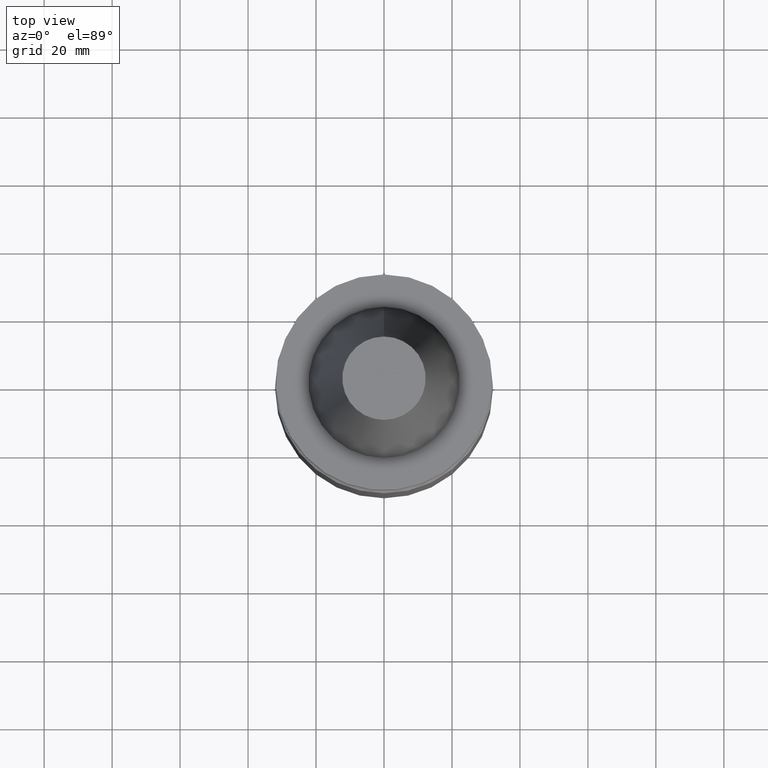
[diagram: clean part render]
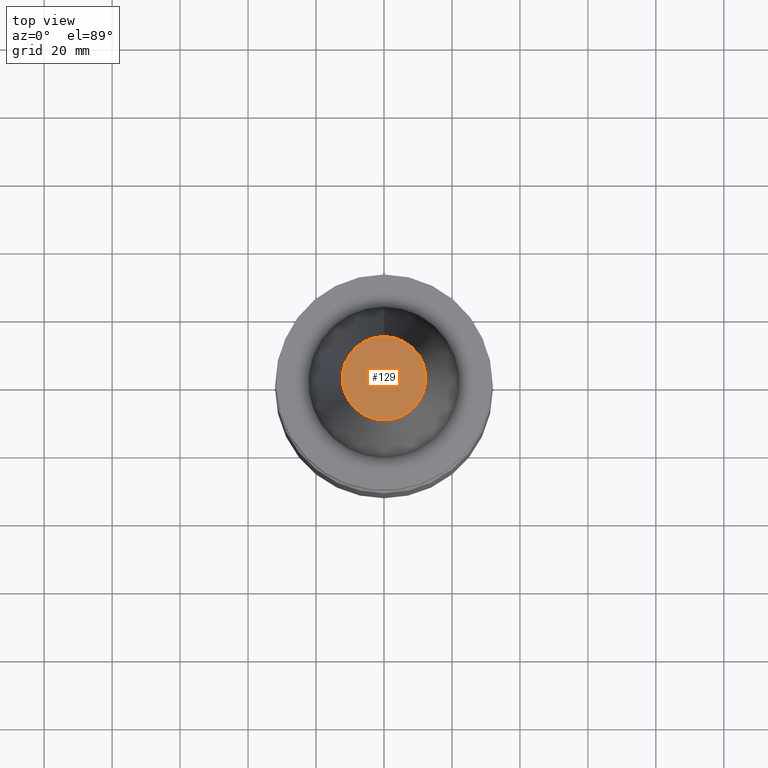
[diagram: same view with one face highlighted and labeled with its STEP entity id]
A machine part, top view. The second image highlights one B-rep face of the part: STEP entity #129.
In plain terms, the highlighted planar face has unit normal (-0, -0, 1).
Its self-contained STEP definition (entity closure, byte-faithful):
#129=ADVANCED_FACE('Unnamed[1]',(#272),#273,.T.);
#137=EDGE_CURVE('Unnamed[1]',#283,#283,#284,.T.);
#272=FACE_OUTER_BOUND('',#441,.T.);
#273=PLANE('',#442);
#283=VERTEX_POINT('',#454);
#284=CIRCLE('',#455,12.2718750014769);
#441=EDGE_LOOP('',(#593));
#442=AXIS2_PLACEMENT_3D('',#594,#595,#596);
#454=CARTESIAN_POINT('',(-4.17910720209034E-015,12.2718750014769,68.25));
#455=AXIS2_PLACEMENT_3D('',#604,#605,#606);
#593=ORIENTED_EDGE('',*,*,#137,.F.);
#594=CARTESIAN_POINT('',(-4.17910720209034E-015,6.13593750073843,68.25));
#595=DIRECTION('',(-6.12323399573677E-017,-1.22464679914735E-016,1.0));
#596=DIRECTION('',(1.23259516440783E-032,-1.0,-1.22464679914735E-016));
#604=CARTESIAN_POINT('',(-4.17910720209034E-015,-8.35821440418068E-015,68.25));
#605=DIRECTION('',(6.12323399573677E-017,1.22464679914735E-016,-1.0));
#606=DIRECTION('',(-1.2325951644077E-032,1.0,1.22464679914735E-016));